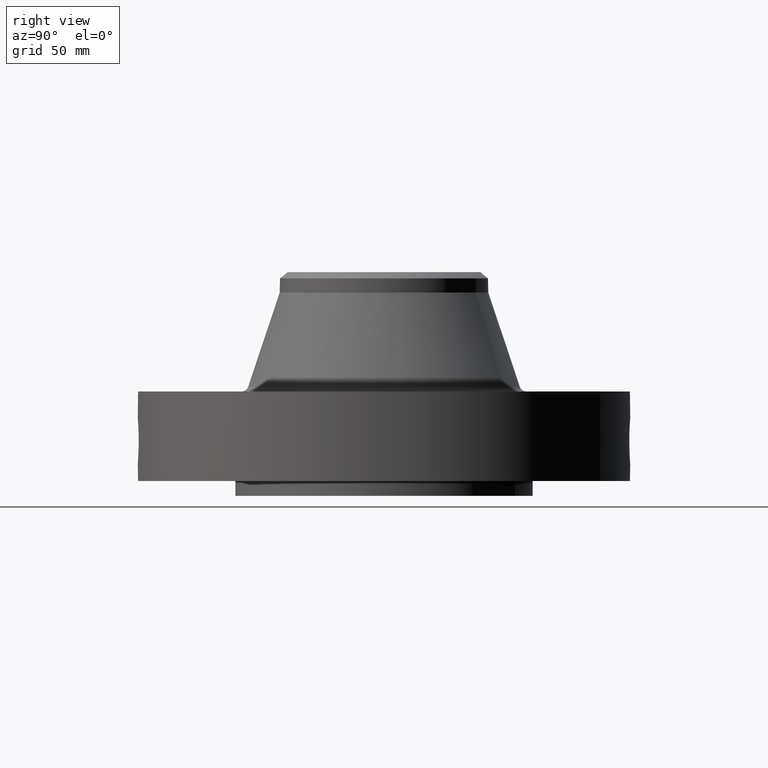
[diagram: clean part render]
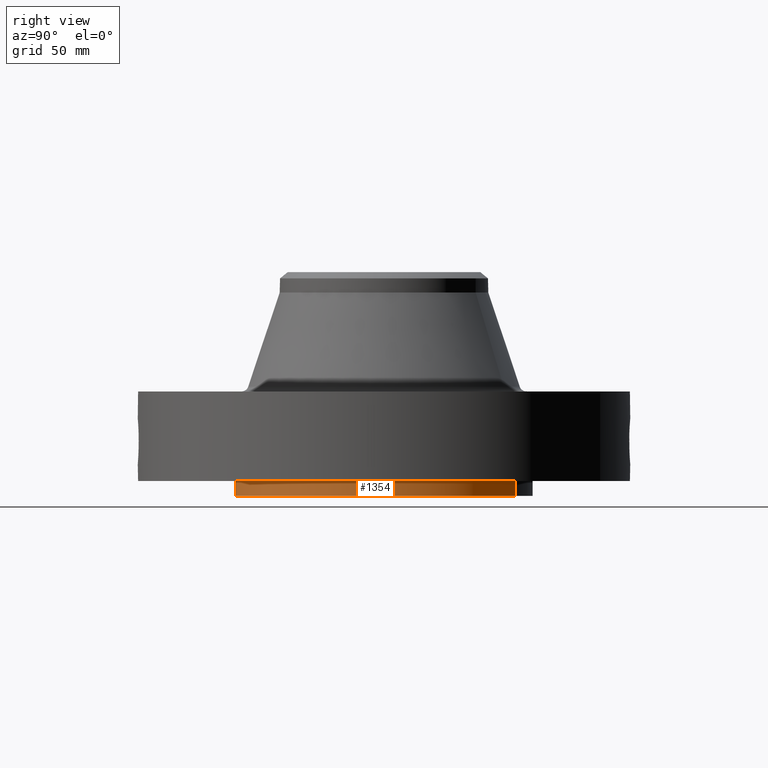
[diagram: same view with one face highlighted and labeled with its STEP entity id]
A machine part, right view. The second image highlights one B-rep face of the part: STEP entity #1354.
In plain terms, the highlighted cylindrical surface (partial cylindrical patch) has radius 63.5 mm, axis along (0, 0, -1).
Its self-contained STEP definition (entity closure, byte-faithful):
#242=AXIS2_PLACEMENT_3D('Circle Axis2P3D',#240,#241,$) ;
#1327=AXIS2_PLACEMENT_3D('Cylinder Axis2P3D',#1324,#1325,#1326) ;
#1331=AXIS2_PLACEMENT_3D('Circle Axis2P3D',#1329,#1330,$) ;
#240=CARTESIAN_POINT('Axis2P3D Location',(0.,0.,0.250000000001)) ;
#244=CARTESIAN_POINT('Vertex',(1.19856384652,2.19395640473,0.250000000001)) ;
#246=CARTESIAN_POINT('Vertex',(-1.19856384652,-2.19395640473,0.250000000001)) ;
#1324=CARTESIAN_POINT('Axis2P3D Location',(0.,0.,1.87500000001)) ;
#1329=CARTESIAN_POINT('Axis2P3D Location',(0.,0.,2.79741234551E-016)) ;
#1333=CARTESIAN_POINT('Vertex',(1.19856384652,2.19395640473,2.79741234551E-016)) ;
#1335=CARTESIAN_POINT('Vertex',(-1.19856384652,-2.19395640473,2.79741234551E-016)) ;
#1338=CARTESIAN_POINT('Line Origine',(1.19856384652,2.19395640473,0.125000000001)) ;
#1343=CARTESIAN_POINT('Line Origine',(-1.19856384652,-2.19395640473,0.125000000001)) ;
#241=DIRECTION('Axis2P3D Direction',(0.,0.,-0.0393700787402)) ;
#1325=DIRECTION('Axis2P3D Direction',(0.,0.,-0.0393700787402)) ;
#1326=DIRECTION('Axis2P3D XDirection',(-0.0188750212049,-0.0345504945626,0.)) ;
#1330=DIRECTION('Axis2P3D Direction',(0.,0.,-0.0393700787402)) ;
#1339=DIRECTION('Vector Direction',(0.,0.,-0.0393700787402)) ;
#1344=DIRECTION('Vector Direction',(0.,0.,-0.0393700787402)) ;
#1340=VECTOR('Line Direction',#1339,0.0393700787402) ;
#1345=VECTOR('Line Direction',#1344,0.0393700787402) ;
#1349=ORIENTED_EDGE('',*,*,#1337,.F.) ;
#1350=ORIENTED_EDGE('',*,*,#1342,.T.) ;
#1351=ORIENTED_EDGE('',*,*,#248,.T.) ;
#1352=ORIENTED_EDGE('',*,*,#1347,.F.) ;
#1354=ADVANCED_FACE('PartBody',(#1353),#1328,.T.) ;
#243=CIRCLE('generated circle',#242,2.50000000001) ;
#1332=CIRCLE('generated circle',#1331,2.50000000001) ;
#1328=CYLINDRICAL_SURFACE('generated cylinder',#1327,2.50000000001) ;
#248=EDGE_CURVE('',#245,#247,#243,.T.) ;
#1337=EDGE_CURVE('',#1334,#1336,#1332,.T.) ;
#1342=EDGE_CURVE('',#1334,#245,#1341,.F.) ;
#1347=EDGE_CURVE('',#1336,#247,#1346,.F.) ;
#1348=EDGE_LOOP('',(#1349,#1350,#1351,#1352)) ;
#1353=FACE_OUTER_BOUND('',#1348,.T.) ;
#1341=LINE('Line',#1338,#1340) ;
#1346=LINE('Line',#1343,#1345) ;
#245=VERTEX_POINT('',#244) ;
#247=VERTEX_POINT('',#246) ;
#1334=VERTEX_POINT('',#1333) ;
#1336=VERTEX_POINT('',#1335) ;